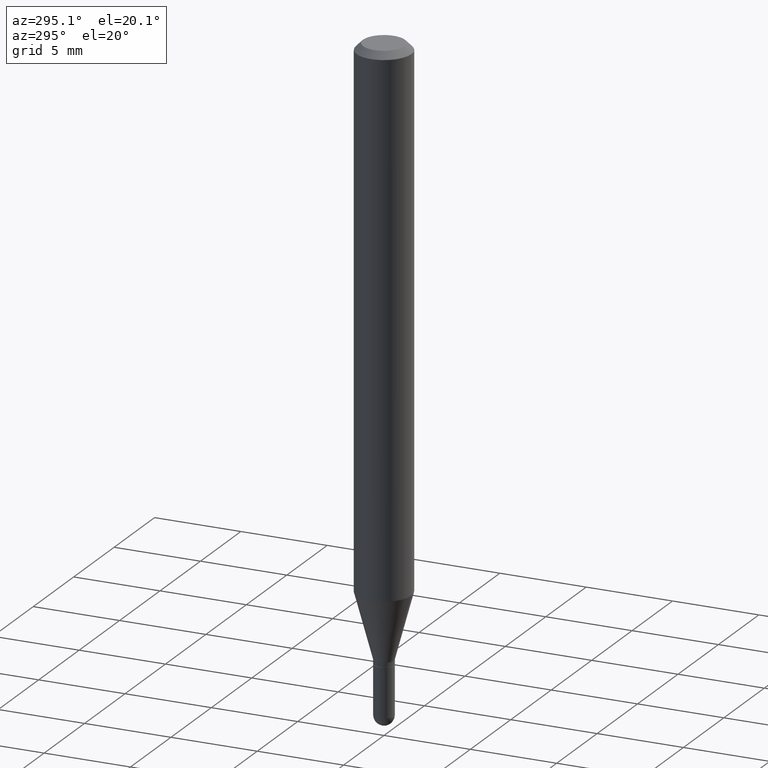
[diagram: clean part render]
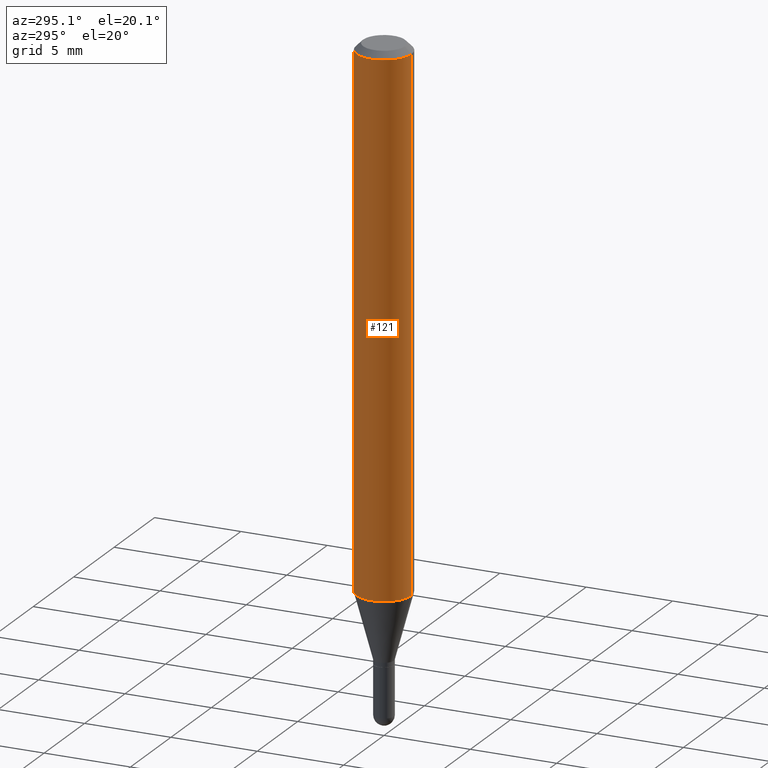
[diagram: same view with one face highlighted and labeled with its STEP entity id]
A machine part, auxiliary view. The second image highlights one B-rep face of the part: STEP entity #121.
In plain terms, the highlighted cylindrical surface (edge-blend (fillet) strip) has radius 1.5875 mm, axis along (-0, 0, 1).
Its self-contained STEP definition (entity closure, byte-faithful):
#2 = CARTESIAN_POINT ( 'NONE',  ( 0.000000000000000000, 0.000000000000000000, 0.000000000000000000 ) ) ;
#12 = ORIENTED_EDGE ( 'NONE', *, *, #200, .F. ) ;
#18 = EDGE_LOOP ( 'NONE', ( #12, #463, #179, #383 ) ) ;
#43 = CYLINDRICAL_SURFACE ( 'NONE', #136, 0.06250000000000000000 ) ;
#46 = CARTESIAN_POINT ( 'NONE',  ( 4.440892098500625669E-16, 0.06250000000000000000, -2.182187107416543441E-16 ) ) ;
#63 = DIRECTION ( 'NONE',  ( -2.445456213792252412E-29, 3.491499371866469505E-15, 1.000000000000000000 ) ) ;
#87 = VERTEX_POINT ( 'NONE', #310 ) ;
#104 = EDGE_CURVE ( 'NONE', #507, #450, #257, .T. ) ;
#121 = ADVANCED_FACE ( 'NONE', ( #187 ), #43, .T. ) ;
#136 = AXIS2_PLACEMENT_3D ( 'NONE', #2, #504, #318 ) ;
#172 = LINE ( 'NONE', #46, #312 ) ;
#179 = ORIENTED_EDGE ( 'NONE', *, *, #348, .T. ) ;
#187 = FACE_OUTER_BOUND ( 'NONE', #18, .T. ) ;
#197 = EDGE_CURVE ( 'NONE', #87, #278, #451, .T. ) ;
#200 = EDGE_CURVE ( 'NONE', #87, #507, #172, .T. ) ;
#218 = LINE ( 'NONE', #384, #296 ) ;
#225 = AXIS2_PLACEMENT_3D ( 'NONE', #324, #489, #335 ) ;
#257 = CIRCLE ( 'NONE', #509, 0.06250000000000000000 ) ;
#273 = CARTESIAN_POINT ( 'NONE',  ( 4.440892098500922971E-16, 0.06249999999999995143, -0.01500000000000022669 ) ) ;
#278 = VERTEX_POINT ( 'NONE', #327 ) ;
#296 = VECTOR ( 'NONE', #63, 39.37007874015748143 ) ;
#310 = CARTESIAN_POINT ( 'NONE',  ( 4.440892098500918040E-16, 0.06249999999999577421, -1.205717967697245596 ) ) ;
#312 = VECTOR ( 'NONE', #398, 39.37007874015748143 ) ;
#317 = DIRECTION ( 'NONE',  ( -2.445456213792252692E-29, 3.491499371866469900E-15, 1.000000000000000000 ) ) ;
#318 = DIRECTION ( 'NONE',  ( -6.982962677686265922E-15, -1.000000000000000000, 3.491499371866469505E-15 ) ) ;
#320 = CARTESIAN_POINT ( 'NONE',  ( 3.668184320688381455E-31, -5.237249057799708128E-17, -0.01500000000000000812 ) ) ;
#324 = CARTESIAN_POINT ( 'NONE',  ( 2.948530496186194822E-29, -4.209763526863048217E-15, -1.205717967697245152 ) ) ;
#327 = CARTESIAN_POINT ( 'NONE',  ( -4.364351673553622350E-16, -0.06250000000000421885, -1.205717967697244930 ) ) ;
#335 = DIRECTION ( 'NONE',  ( -6.982962677686265922E-15, -1.000000000000000000, 4.370956789862821150E-15 ) ) ;
#348 = EDGE_CURVE ( 'NONE', #278, #450, #218, .T. ) ;
#381 = CARTESIAN_POINT ( 'NONE',  ( -4.364351673553912750E-16, -0.06250000000000005551, -0.01499999999999979128 ) ) ;
#383 = ORIENTED_EDGE ( 'NONE', *, *, #104, .F. ) ;
#384 = CARTESIAN_POINT ( 'NONE',  ( -4.364351673553916201E-16, -0.06250000000000000000, 2.182187107416543441E-16 ) ) ;
#395 = DIRECTION ( 'NONE',  ( -6.982962677686265922E-15, -1.000000000000000000, 3.483106191921935554E-15 ) ) ;
#398 = DIRECTION ( 'NONE',  ( -2.445456213792252412E-29, 3.491499371866469505E-15, 1.000000000000000000 ) ) ;
#450 = VERTEX_POINT ( 'NONE', #381 ) ;
#451 = CIRCLE ( 'NONE', #225, 0.06250000000000000000 ) ;
#463 = ORIENTED_EDGE ( 'NONE', *, *, #197, .T. ) ;
#489 = DIRECTION ( 'NONE',  ( -2.445456213792252692E-29, 3.491499371866469900E-15, 1.000000000000000000 ) ) ;
#504 = DIRECTION ( 'NONE',  ( -2.445456213792252692E-29, 3.491499371866469900E-15, 1.000000000000000000 ) ) ;
#507 = VERTEX_POINT ( 'NONE', #273 ) ;
#509 = AXIS2_PLACEMENT_3D ( 'NONE', #320, #317, #395 ) ;